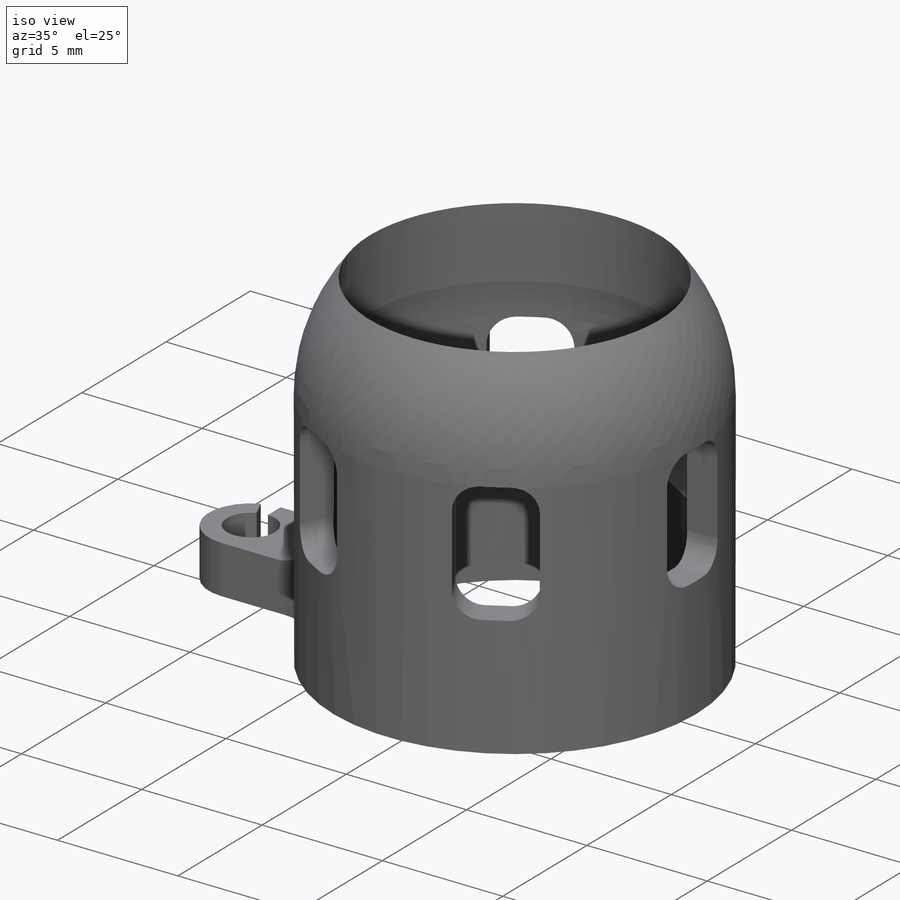
[diagram: iso view]
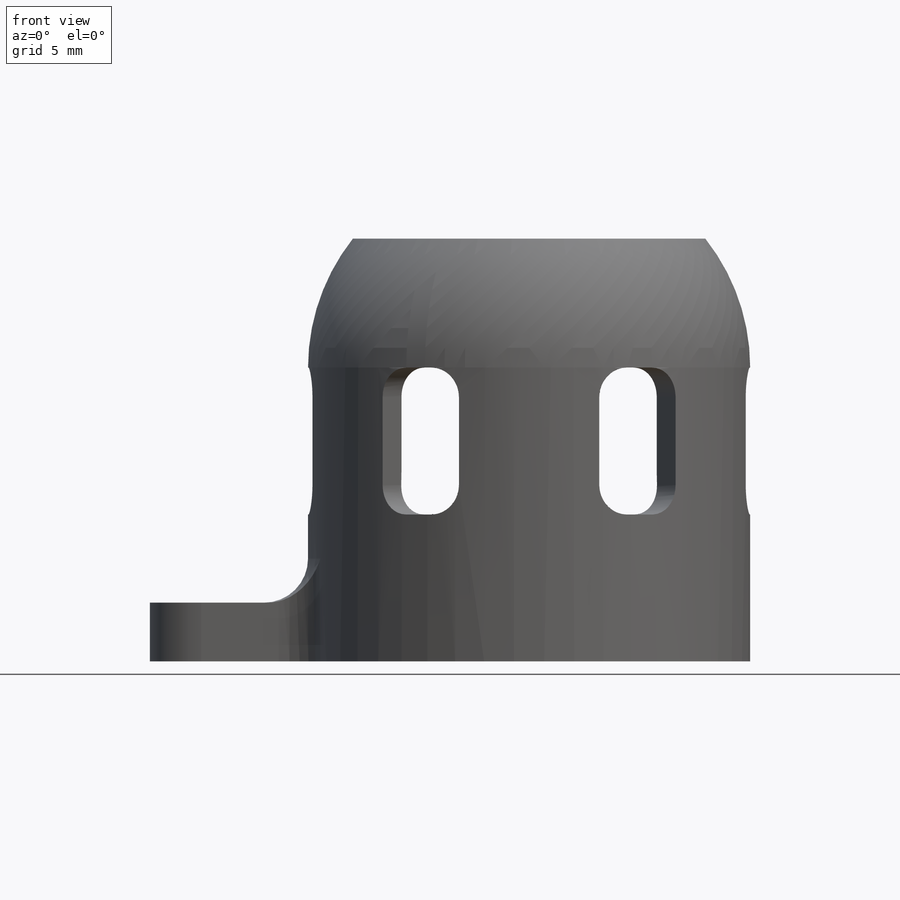
[diagram: front view]
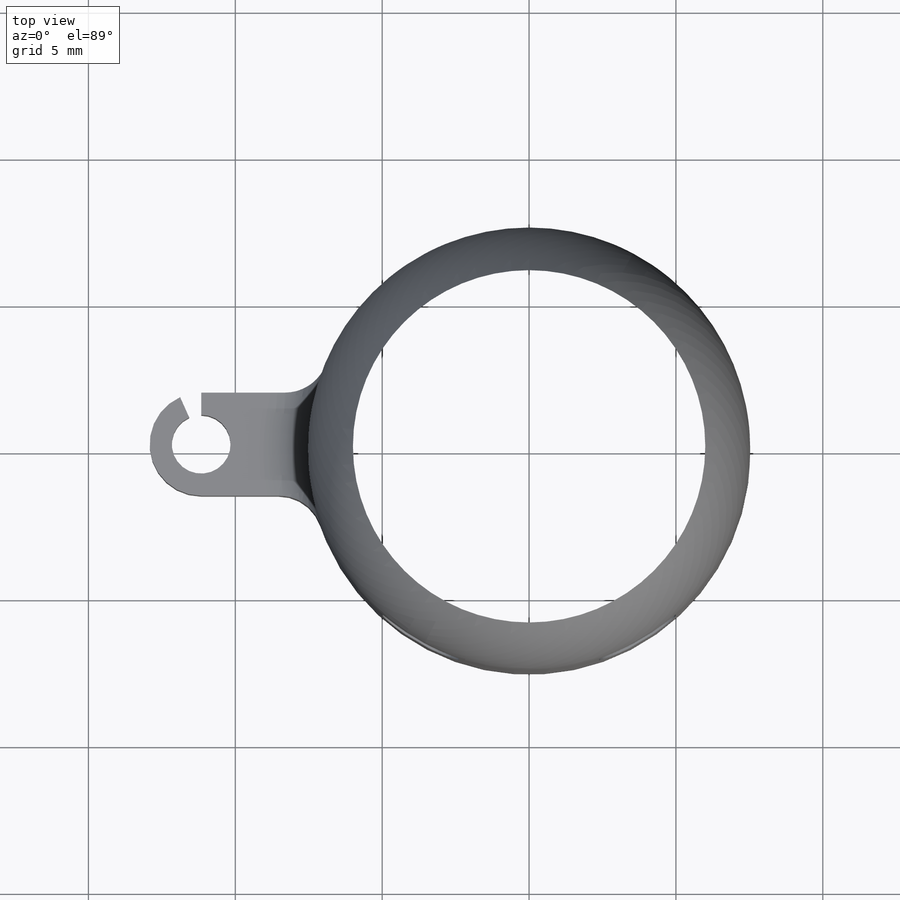
[diagram: top view]
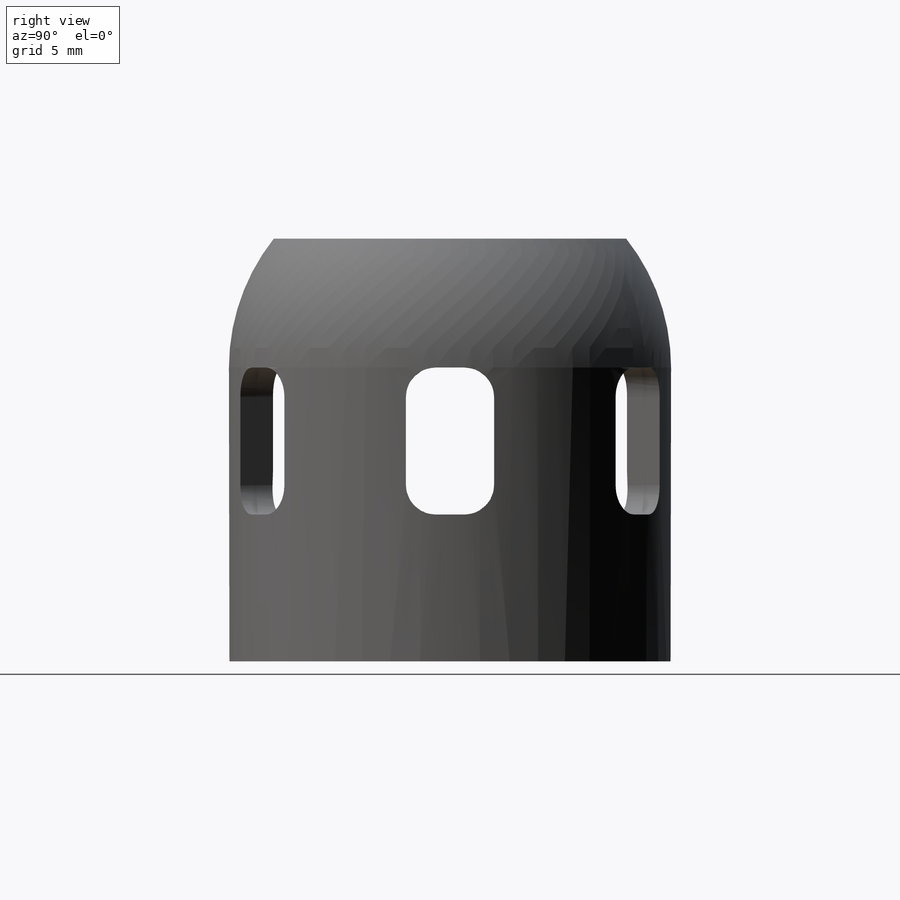
[diagram: right view]
SOLIDWORKS PART (.sldprt)
format: sldprt  version: not decoded by parser v0  size: 327,168 bytes
history: native  units: mm
features: sketch x4, cut_extrude x2, fillet x2, material x1, revolve x1, plane x1, pattern_circular x1, extrude x1 (+12 scaffold rows collapsed)
feature tree (25):
  scaffold x12  (default folders/planes/origin — collapsed)
  material  "Material <not specified>"
  sketch  "Sketch3"  dims[c1.D1=13.0mm c1.D2=10.0mm c2.D1=1.25mm]
  revolve  "Revolve1"  Angle=360deg
  sketch  "Sketch4"  dims[D1=~6.285776mm]
  cut_extrude  "Cut-Extrude2"  Depth=22mm
  plane  "Plane1"
  sketch  "Sketch5"  dims[c1.D1=1.0mm c1.D2=1.0mm c2.D1=1.5mm c2.D2=1.5mm]
  cut_extrude  "Cut-Extrude3"  Depth=2mm
  fillet  "Fillet1"  Radius=1mm
  pattern_circular  "CirPattern1"  Count=6 Angle=60deg
  sketch  "Sketch6"  dims[c1.D1=~1.174965mm c1.D2=~1.112115mm c2.D1=5.0mm]
  extrude  "Boss-Extrude2"  Depth=2mm
  fillet  "Fillet2"  Radius=1.5mm
decode coverage: 11 of 11 modeling features carry decoded parameters
note: ~ marks probable driven/reference dimensions
note: suppression state not decoded; provenance and decode notes live in map.json
